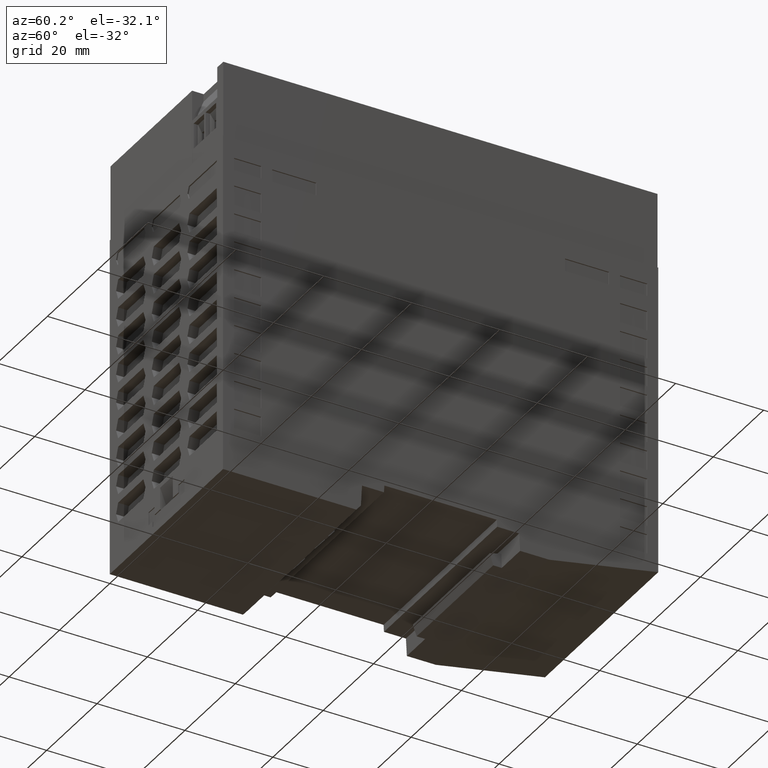
[diagram: clean part render]
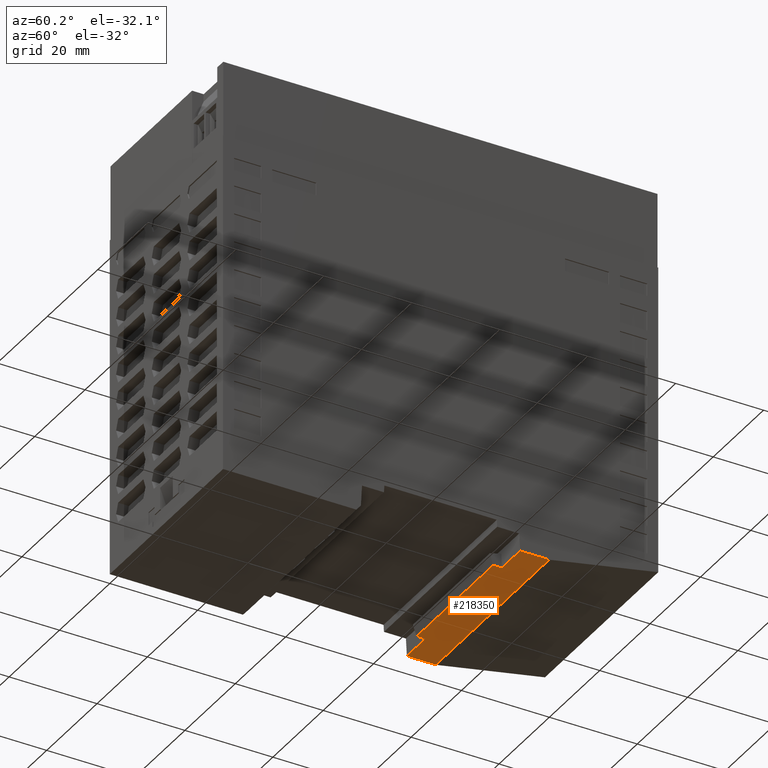
[diagram: same view with one face highlighted and labeled with its STEP entity id]
A machine part, auxiliary view. The second image highlights one B-rep face of the part: STEP entity #218350.
In plain terms, the highlighted planar face has unit normal (0, -0, 1).
Its self-contained STEP definition (entity closure, byte-faithful):
#7760=CARTESIAN_POINT('',(-16.,-3.99999999999999,24.7));
#7770=VERTEX_POINT('',#7760);
#7800=CARTESIAN_POINT('',(-16.,-4.,0.));
#7810=DIRECTION('',(0.,0.,1.));
#7820=VECTOR('',#7810,1.);
#7830=LINE('',#7800,#7820);
#7840=CARTESIAN_POINT('',(-16.,-3.99999999999999,18.0838968808824));
#7850=VERTEX_POINT('',#7840);
#7860=EDGE_CURVE('',#7850,#7770,#7830,.T.);
#23110=CARTESIAN_POINT('',(29.,-3.99999999999999,18.0838968808824));
#23120=VERTEX_POINT('',#23110);
#23150=CARTESIAN_POINT('',(29.,-4.,0.));
#23160=DIRECTION('',(0.,0.,-1.));
#23170=VECTOR('',#23160,1.);
#23180=LINE('',#23150,#23170);
#23190=CARTESIAN_POINT('',(29.,-3.99999999999999,24.7));
#23200=VERTEX_POINT('',#23190);
#23210=EDGE_CURVE('',#23200,#23120,#23180,.T.);
#93250=CARTESIAN_POINT('',(0.,-4.00000000000001,24.7));
#93260=DIRECTION('',(1.,0.,0.));
#93270=VECTOR('',#93260,1.);
#93280=LINE('',#93250,#93270);
#93290=EDGE_CURVE('',#7770,#23200,#93280,.T.);
#142710=CARTESIAN_POINT('',(21.7,-3.99999999999997,16.134211973119));
#142720=VERTEX_POINT('',#142710);
#142750=CARTESIAN_POINT('',(21.7,-4.,0.));
#142760=DIRECTION('',(0.,0.,-1.));
#142770=VECTOR('',#142760,1.);
#142780=LINE('',#142750,#142770);
#142790=CARTESIAN_POINT('',(21.7,-3.99999999999999,18.0838968808824));
#142800=VERTEX_POINT('',#142790);
#142810=EDGE_CURVE('',#142800,#142720,#142780,.T.);
#218000=CARTESIAN_POINT('',(1.74999999999998,-3.99999999999999,
24.6904133168945));
#218010=DIRECTION('',(0.,1.,0.));
#218020=DIRECTION('',(0.,0.,1.));
#218030=AXIS2_PLACEMENT_3D('',#218000,#218010,#218020);
#218040=PLANE('',#218030);
#218050=CARTESIAN_POINT('',(-8.7,-4.,0.));
#218060=DIRECTION('',(0.,0.,-1.));
#218070=VECTOR('',#218060,1.);
#218080=LINE('',#218050,#218070);
#218090=CARTESIAN_POINT('',(-8.7,-3.99999999999999,18.0838968808824));
#218100=VERTEX_POINT('',#218090);
#218110=CARTESIAN_POINT('',(-8.7,-3.99999999999999,16.134211973119));
#218120=VERTEX_POINT('',#218110);
#218130=EDGE_CURVE('',#218100,#218120,#218080,.T.);
#218140=ORIENTED_EDGE('',*,*,#218130,.T.);
#218150=CARTESIAN_POINT('',(0.,-4.,18.0838968808824));
#218160=DIRECTION('',(1.,0.,0.));
#218170=VECTOR('',#218160,1.);
#218180=LINE('',#218150,#218170);
#218190=EDGE_CURVE('',#7850,#218100,#218180,.T.);
#218200=ORIENTED_EDGE('',*,*,#218190,.T.);
#218210=ORIENTED_EDGE('',*,*,#7860,.F.);
#218220=ORIENTED_EDGE('',*,*,#93290,.F.);
#218230=ORIENTED_EDGE('',*,*,#23210,.F.);
#218240=EDGE_CURVE('',#142800,#23120,#218180,.T.);
#218250=ORIENTED_EDGE('',*,*,#218240,.T.);
#218260=ORIENTED_EDGE('',*,*,#142810,.F.);
#218270=CARTESIAN_POINT('',(0.,-3.99999999999999,16.134211973119));
#218280=DIRECTION('',(-1.,0.,0.));
#218290=VECTOR('',#218280,1.);
#218300=LINE('',#218270,#218290);
#218310=EDGE_CURVE('',#142720,#218120,#218300,.T.);
#218320=ORIENTED_EDGE('',*,*,#218310,.F.);
#218330=EDGE_LOOP('',(#218320,#218260,#218250,#218230,#218220,#218210,
#218200,#218140));
#218340=FACE_OUTER_BOUND('',#218330,.T.);
#218350=ADVANCED_FACE('',(#218340),#218040,.F.);